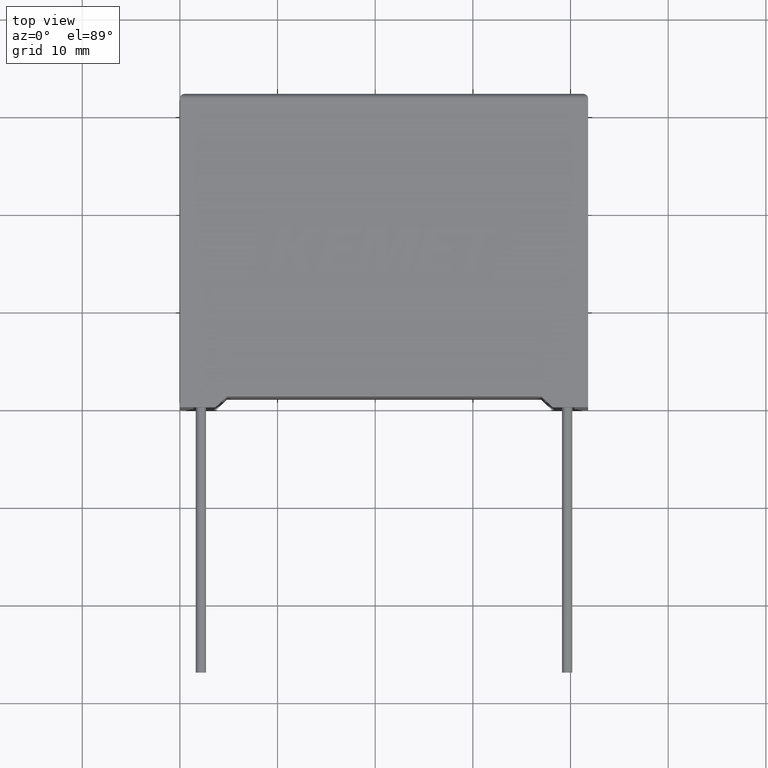
[diagram: clean part render]
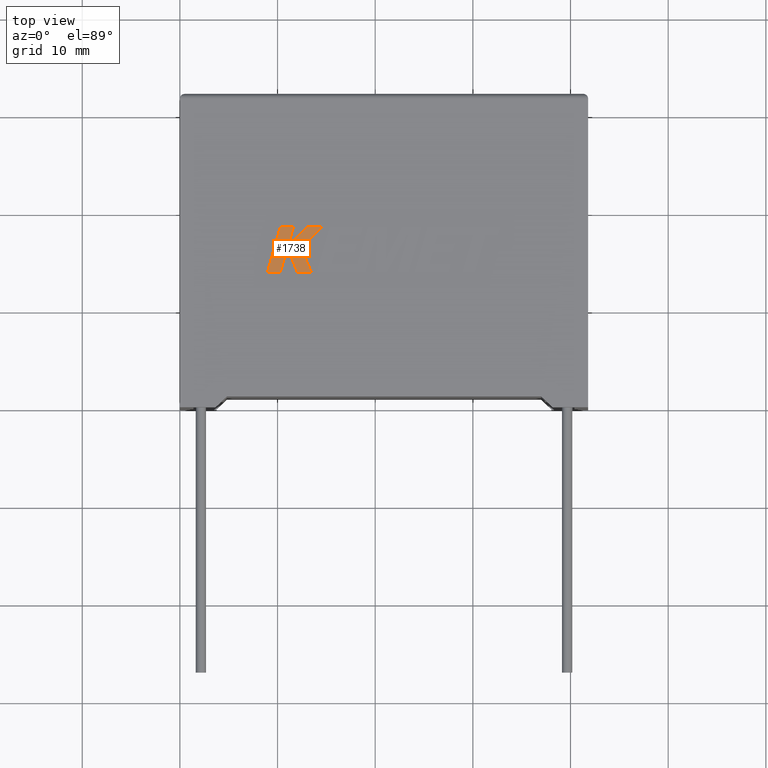
[diagram: same view with one face highlighted and labeled with its STEP entity id]
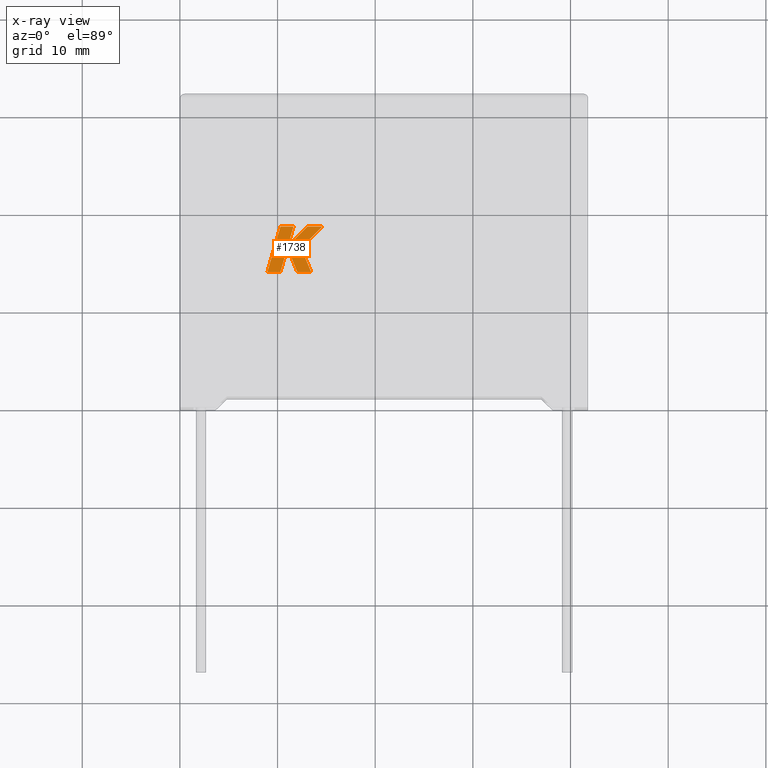
[diagram: x-ray of the same camera — body ghosted, the highlighted face saturated]
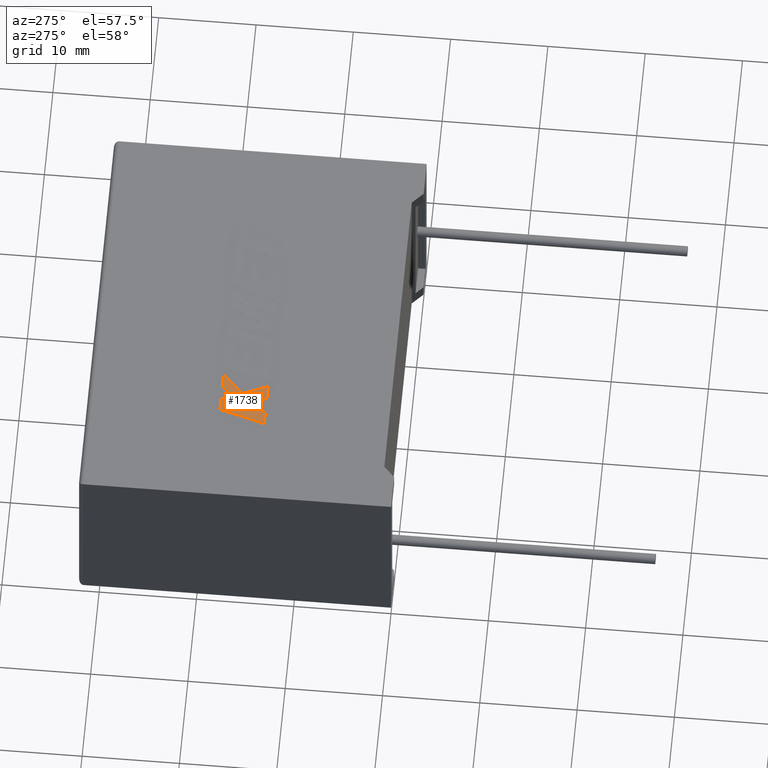
[diagram: same view with one face highlighted and labeled with its STEP entity id]
A machine part, top view. The second image highlights one B-rep face of the part: STEP entity #1738.
The next image is the same camera in x-ray: the body ghosted, the highlighted face saturated — about 0% of this face is hidden behind the body in this view.
A second angle (auxiliary view) of the same face is appended — the face is thin or edge-on in the first view.
In plain terms, the highlighted planar face has unit normal (0, 0, -1).
Its self-contained STEP definition (entity closure, byte-faithful):
#9 = ORIENTED_EDGE ( 'NONE', *, *, #1419, .T. ) ;
#10 = DIRECTION ( 'NONE',  ( 1.000000000000000000, 0.000000000000000000, 0.000000000000000000 ) ) ;
#58 = ORIENTED_EDGE ( 'NONE', *, *, #807, .T. ) ;
#88 = LINE ( 'NONE', #1525, #1920 ) ;
#102 = DIRECTION ( 'NONE',  ( -1.000000000000000000, -0.000000000000000000, -0.000000000000000000 ) ) ;
#109 = LINE ( 'NONE', #2440, #1000 ) ;
#227 = CARTESIAN_POINT ( 'NONE',  ( 11.05569000726121942, 16.49801617243404195, 19.20499999999999829 ) ) ;
#284 = EDGE_CURVE ( 'NONE', #1348, #2955, #2213, .T. ) ;
#288 = VERTEX_POINT ( 'NONE', #2458 ) ;
#343 = CARTESIAN_POINT ( 'NONE',  ( 12.02977136456856577, 13.81262999999985652, 19.20499999999999829 ) ) ;
#346 = VERTEX_POINT ( 'NONE', #1470 ) ;
#395 = ORIENTED_EDGE ( 'NONE', *, *, #2003, .T. ) ;
#436 = DIRECTION ( 'NONE',  ( -0.7059037656364501867, -0.7083077534943971187, -0.000000000000000000 ) ) ;
#467 = DIRECTION ( 'NONE',  ( -1.000000000000000000, -0.000000000000000000, -0.000000000000000000 ) ) ;
#481 = CARTESIAN_POINT ( 'NONE',  ( 11.62800409117783751, 18.49458116021453336, 19.20499999999999829 ) ) ;
#482 = EDGE_CURVE ( 'NONE', #2861, #2542, #3007, .T. ) ;
#495 = ORIENTED_EDGE ( 'NONE', *, *, #629, .T. ) ;
#531 = FACE_OUTER_BOUND ( 'NONE', #2303, .T. ) ;
#547 = ORIENTED_EDGE ( 'NONE', *, *, #2163, .T. ) ;
#561 = VERTEX_POINT ( 'NONE', #2957 ) ;
#629 = EDGE_CURVE ( 'NONE', #2955, #2861, #2586, .T. ) ;
#639 = ORIENTED_EDGE ( 'NONE', *, *, #2614, .T. ) ;
#744 = ORIENTED_EDGE ( 'NONE', *, *, #482, .T. ) ;
#772 = DIRECTION ( 'NONE',  ( -0.3829140317376763525, 0.9237839814038765196, 0.000000000000000000 ) ) ;
#788 = EDGE_CURVE ( 'NONE', #1991, #561, #1954, .T. ) ;
#807 = EDGE_CURVE ( 'NONE', #561, #288, #2155, .T. ) ;
#842 = ORIENTED_EDGE ( 'NONE', *, *, #788, .T. ) ;
#861 = ORIENTED_EDGE ( 'NONE', *, *, #284, .T. ) ;
#926 = LINE ( 'NONE', #2571, #1243 ) ;
#939 = VECTOR ( 'NONE', #3026, 1000.000000000000114 ) ;
#965 = LINE ( 'NONE', #1893, #1399 ) ;
#1000 = VECTOR ( 'NONE', #1031, 1000.000000000000114 ) ;
#1022 = CARTESIAN_POINT ( 'NONE',  ( 13.04547867787654170, 18.49458116021453336, 19.20499999999999829 ) ) ;
#1031 = DIRECTION ( 'NONE',  ( 0.3725077383643967677, -0.9280290862137037244, 0.000000000000000000 ) ) ;
#1132 = EDGE_CURVE ( 'NONE', #1633, #1348, #926, .T. ) ;
#1185 = LINE ( 'NONE', #2103, #2223 ) ;
#1243 = VECTOR ( 'NONE', #467, 1000.000000000000000 ) ;
#1244 = VECTOR ( 'NONE', #436, 1000.000000000000000 ) ;
#1348 = VERTEX_POINT ( 'NONE', #2756 ) ;
#1379 = CARTESIAN_POINT ( 'NONE',  ( 10.28071278597109739, 13.81262999999985297, 19.20499999999999829 ) ) ;
#1381 = CARTESIAN_POINT ( 'NONE',  ( 11.00935195209560824, 16.35480240981338085, 19.20499999999999829 ) ) ;
#1393 = AXIS2_PLACEMENT_3D ( 'NONE', #2408, #1478, #2425 ) ;
#1399 = VECTOR ( 'NONE', #2201, 1000.000000000000000 ) ;
#1408 = ORIENTED_EDGE ( 'NONE', *, *, #1132, .T. ) ;
#1419 = EDGE_CURVE ( 'NONE', #2235, #346, #2514, .T. ) ;
#1467 = PLANE ( 'NONE',  #1393 ) ;
#1470 = CARTESIAN_POINT ( 'NONE',  ( 11.05569000726121942, 16.49801617243404195, 19.20499999999999829 ) ) ;
#1476 = CARTESIAN_POINT ( 'NONE',  ( 8.949379999999999669, 13.81263000000000041, 19.20499999999999829 ) ) ;
#1478 = DIRECTION ( 'NONE',  ( 0.000000000000000000, 0.000000000000000000, -1.000000000000000000 ) ) ;
#1509 = CARTESIAN_POINT ( 'NONE',  ( 12.40058966359735848, 16.35480240981340927, 19.20499999999999829 ) ) ;
#1510 = CARTESIAN_POINT ( 'NONE',  ( 13.45433545959466848, 13.81262999999985652, 19.20499999999999829 ) ) ;
#1525 = CARTESIAN_POINT ( 'NONE',  ( 13.04547867787654170, 18.49458116021453336, 19.20499999999999829 ) ) ;
#1633 = VERTEX_POINT ( 'NONE', #481 ) ;
#1738 = ADVANCED_FACE ( 'NONE', ( #531 ), #1467, .F. ) ;
#1846 = CARTESIAN_POINT ( 'NONE',  ( 11.00935195209560824, 16.35480240981338085, 19.20499999999999829 ) ) ;
#1893 = CARTESIAN_POINT ( 'NONE',  ( 11.62800409117783751, 18.49458116021453336, 19.20499999999999829 ) ) ;
#1920 = VECTOR ( 'NONE', #102, 1000.000000000000000 ) ;
#1935 = CARTESIAN_POINT ( 'NONE',  ( 8.949379999999999669, 13.81263000000000041, 19.20499999999999829 ) ) ;
#1954 = LINE ( 'NONE', #1509, #2159 ) ;
#1970 = DIRECTION ( 'NONE',  ( 0.7145695586382624365, 0.6995643972269591782, 0.000000000000000000 ) ) ;
#1991 = VERTEX_POINT ( 'NONE', #1510 ) ;
#2003 = EDGE_CURVE ( 'NONE', #288, #2235, #88, .T. ) ;
#2060 = CARTESIAN_POINT ( 'NONE',  ( 10.28071278597109739, 13.81262999999985297, 19.20499999999999829 ) ) ;
#2103 = CARTESIAN_POINT ( 'NONE',  ( 13.45433545959466848, 13.81262999999985652, 19.20499999999999829 ) ) ;
#2155 = LINE ( 'NONE', #2887, #2518 ) ;
#2159 = VECTOR ( 'NONE', #772, 1000.000000000000114 ) ;
#2163 = EDGE_CURVE ( 'NONE', #2601, #1991, #1185, .T. ) ;
#2197 = EDGE_CURVE ( 'NONE', #346, #1633, #965, .T. ) ;
#2201 = DIRECTION ( 'NONE',  ( 0.2755520632520601643, 0.9612861490927312458, 0.000000000000000000 ) ) ;
#2213 = LINE ( 'NONE', #1935, #2481 ) ;
#2223 = VECTOR ( 'NONE', #10, 1000.000000000000000 ) ;
#2235 = VERTEX_POINT ( 'NONE', #1022 ) ;
#2303 = EDGE_LOOP ( 'NONE', ( #861, #495, #744, #639, #547, #842, #58, #395, #9, #2815, #1408 ) ) ;
#2408 = CARTESIAN_POINT ( 'NONE',  ( -0.5081854015330893315, -1.341323862995330796, 19.20499999999999119 ) ) ;
#2425 = DIRECTION ( 'NONE',  ( -1.000000000000000000, 0.000000000000000000, 0.000000000000000000 ) ) ;
#2440 = CARTESIAN_POINT ( 'NONE',  ( 12.02977136456856577, 13.81262999999985652, 19.20499999999999829 ) ) ;
#2458 = CARTESIAN_POINT ( 'NONE',  ( 14.58626515440082017, 18.49458116021453336, 19.20499999999999829 ) ) ;
#2481 = VECTOR ( 'NONE', #2645, 1000.000000000000114 ) ;
#2514 = LINE ( 'NONE', #227, #1244 ) ;
#2518 = VECTOR ( 'NONE', #1970, 1000.000000000000114 ) ;
#2542 = VERTEX_POINT ( 'NONE', #1846 ) ;
#2567 = VECTOR ( 'NONE', #3040, 1000.000000000000000 ) ;
#2571 = CARTESIAN_POINT ( 'NONE',  ( 10.29489180638525703, 18.49458116021453336, 19.20499999999999829 ) ) ;
#2586 = LINE ( 'NONE', #1379, #2567 ) ;
#2601 = VERTEX_POINT ( 'NONE', #343 ) ;
#2614 = EDGE_CURVE ( 'NONE', #2542, #2601, #109, .T. ) ;
#2645 = DIRECTION ( 'NONE',  ( -0.2762033010252004650, -0.9610992334315860974, -0.000000000000000000 ) ) ;
#2756 = CARTESIAN_POINT ( 'NONE',  ( 10.29489180638525703, 18.49458116021453336, 19.20499999999999829 ) ) ;
#2815 = ORIENTED_EDGE ( 'NONE', *, *, #2197, .T. ) ;
#2861 = VERTEX_POINT ( 'NONE', #2060 ) ;
#2887 = CARTESIAN_POINT ( 'NONE',  ( 14.58626515440082017, 18.49458116021453336, 19.20499999999999829 ) ) ;
#2955 = VERTEX_POINT ( 'NONE', #1476 ) ;
#2957 = CARTESIAN_POINT ( 'NONE',  ( 12.40058966359735848, 16.35480240981340927, 19.20499999999999829 ) ) ;
#3007 = LINE ( 'NONE', #1381, #939 ) ;
#3026 = DIRECTION ( 'NONE',  ( 0.2755265765475025663, 0.9612934544747576693, 0.000000000000000000 ) ) ;
#3040 = DIRECTION ( 'NONE',  ( 1.000000000000000000, -1.104435275910379373E-13, 0.000000000000000000 ) ) ;